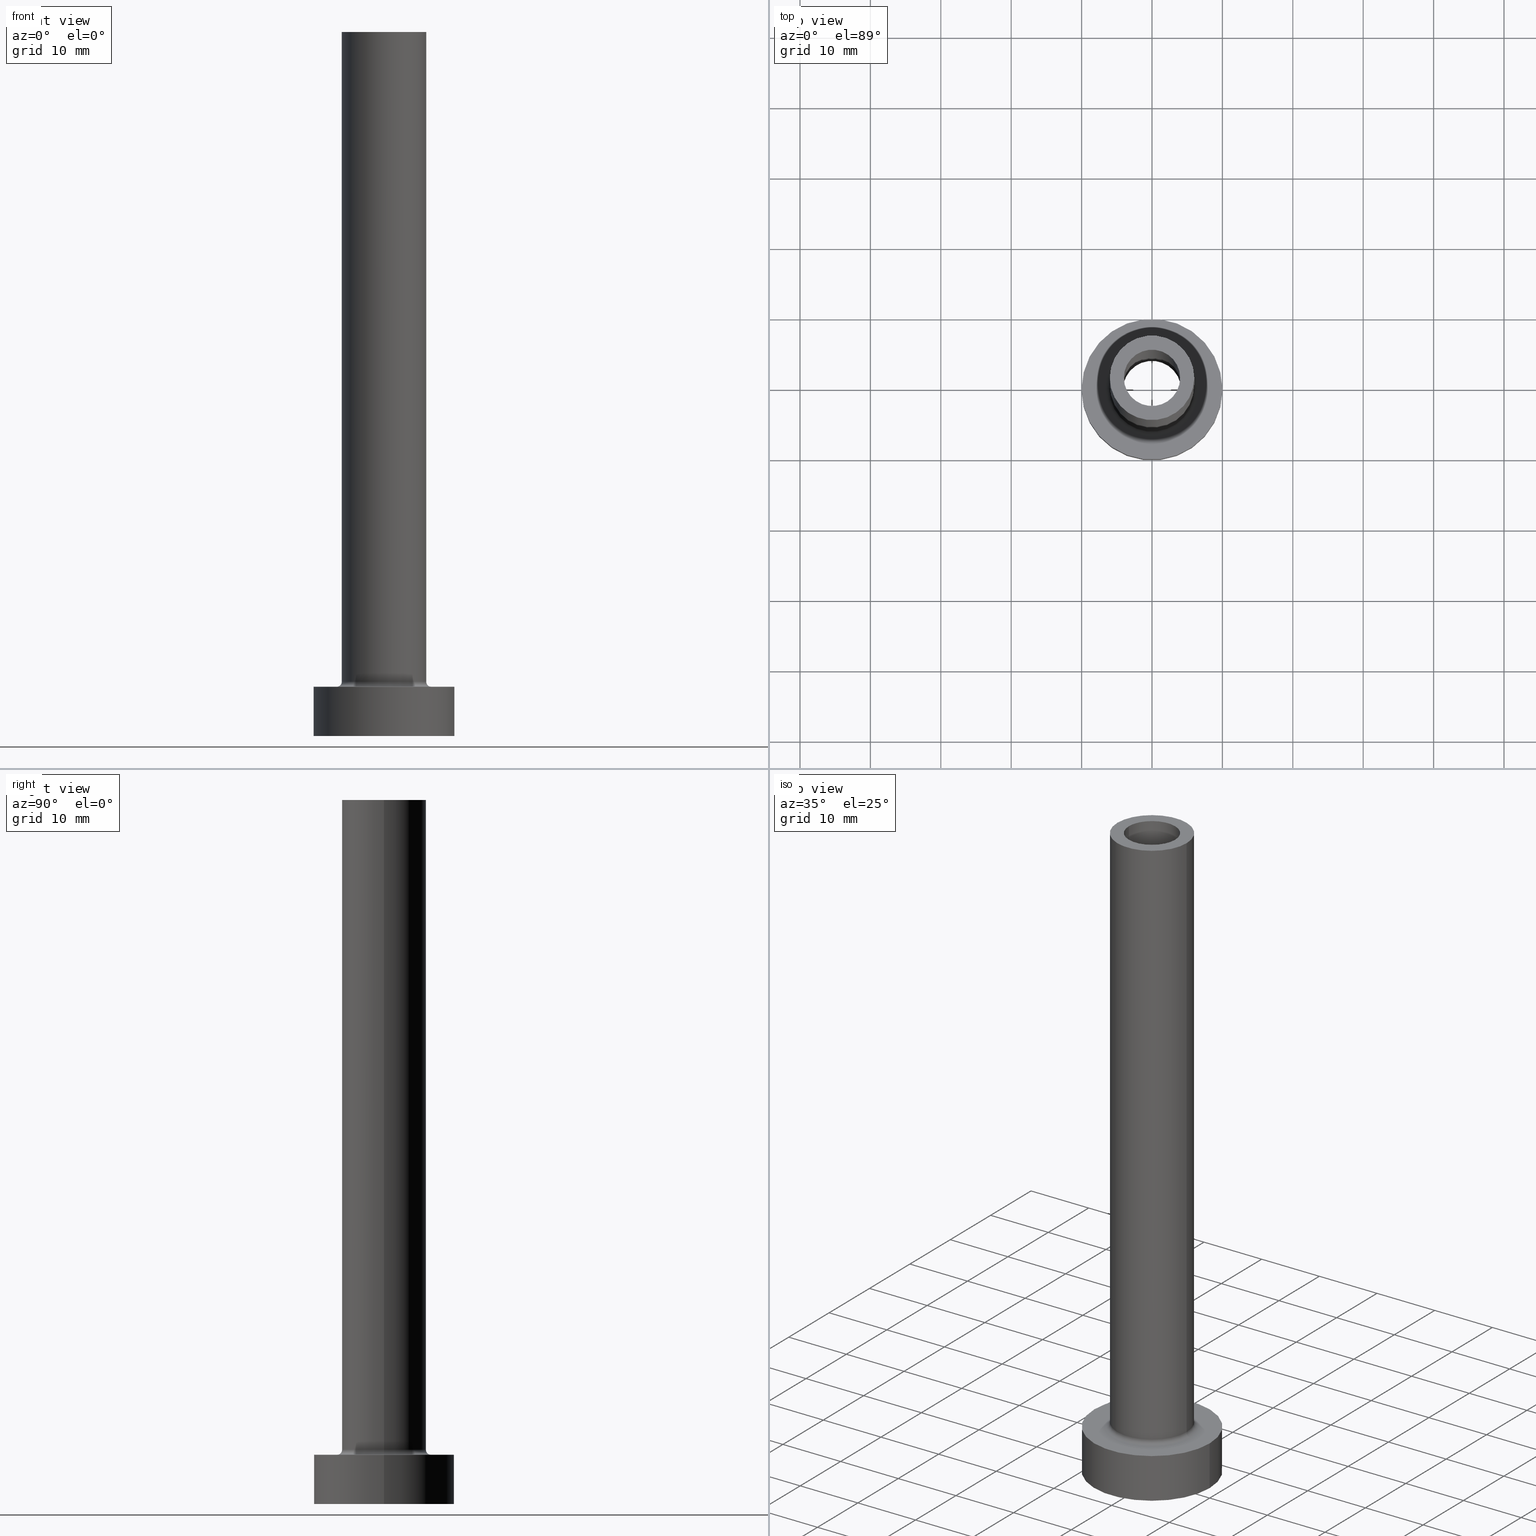
[diagram: canonical four-view strip — front | top / right | iso, engineering-drawing reading convention]
A machine part, canonical four-view strip (front | top / right | iso — engineering-drawing reading convention). The complete STEP part file that produces these views, byte-faithful:
ISO-10303-21;
HEADER;
FILE_DESCRIPTION (( 'STEP AP203' ),
    '1' );
FILE_NAME ('e886.STEP',
    '2023-02-13T09:11:17',
    ( '' ),
    ( '' ),
    'SwSTEP 2.0',
    'SolidWorks 2019',
    '' );
FILE_SCHEMA (( 'CONFIG_CONTROL_DESIGN' ));
ENDSEC;

DATA;
#1 = CALENDAR_DATE ( 2023, 13, 2 ) ;
#2 = SECURITY_CLASSIFICATION ( '', '', #251 ) ;
#3 = LINE ( 'NONE', #289, #141 ) ;
#4 = CARTESIAN_POINT ( 'NONE',  ( 0.000000000000000000, 0.000000000000000000, 55.00000000000000711 ) ) ;
#5 = DIRECTION ( 'NONE',  ( 1.000000000000000000, 0.000000000000000000, -0.000000000000000000 ) ) ;
#6 = DIRECTION ( 'NONE',  ( -0.000000000000000000, -0.000000000000000000, -1.000000000000000000 ) ) ;
#7 = LINE ( 'NONE', #49, #86 ) ;
#8 = VERTEX_POINT ( 'NONE', #224 ) ;
#9 = CARTESIAN_POINT ( 'NONE',  ( -6.700000000000001066, 8.205133554287267548E-16, 6.999999999999999112 ) ) ;
#10 = FACE_OUTER_BOUND ( 'NONE', #185, .T. ) ;
#11 = AXIS2_PLACEMENT_3D ( 'NONE', #265, #84, #120 ) ;
#12 = VERTEX_POINT ( 'NONE', #221 ) ;
#13 = CARTESIAN_POINT ( 'NONE',  ( 0.000000000000000000, 0.000000000000000000, 7.000000000000000000 ) ) ;
#14 = DIRECTION ( 'NONE',  ( -0.000000000000000000, -0.000000000000000000, -1.000000000000000000 ) ) ;
#15 = APPLICATION_CONTEXT ( 'configuration controlled 3d designs of mechanical parts and assemblies' ) ;
#16 = VERTEX_POINT ( 'NONE', #254 ) ;
#17 = CARTESIAN_POINT ( 'NONE',  ( 0.000000000000000000, 0.000000000000000000, 7.699999999999998401 ) ) ;
#18 = DIRECTION ( 'NONE',  ( 0.000000000000000000, 0.000000000000000000, 1.000000000000000000 ) ) ;
#19 = EDGE_CURVE ( 'NONE', #180, #247, #112, .T. ) ;
#20 = ORIENTED_EDGE ( 'NONE', *, *, #203, .T. ) ;
#21 = CARTESIAN_POINT ( 'NONE',  ( 0.000000000000000000, 0.000000000000000000, 100.0000000000000000 ) ) ;
#22 = ORIENTED_EDGE ( 'NONE', *, *, #294, .F. ) ;
#23 = AXIS2_PLACEMENT_3D ( 'NONE', #17, #312, #372 ) ;
#24 = ORIENTED_EDGE ( 'NONE', *, *, #138, .F. ) ;
#25 = CC_DESIGN_DATE_AND_TIME_ASSIGNMENT ( #213, #244, ( #307 ) ) ;
#26 = CALENDAR_DATE ( 2023, 13, 2 ) ;
#27 = ORIENTED_EDGE ( 'NONE', *, *, #19, .F. ) ;
#28 = AXIS2_PLACEMENT_3D ( 'NONE', #322, #280, #214 ) ;
#29 = APPROVAL_STATUS ( 'not_yet_approved' ) ;
#30 = ORIENTED_EDGE ( 'NONE', *, *, #402, .T. ) ;
#31 = EDGE_CURVE ( 'NONE', #139, #153, #425, .T. ) ;
#32 = PERSON_AND_ORGANIZATION ( #390, #356 ) ;
#33 = PRODUCT_DEFINITION_SHAPE ( 'NONE', 'NONE',  #307 ) ;
#34 = CARTESIAN_POINT ( 'NONE',  ( -10.00000000000000000, 0.000000000000000000, 7.000000000000000000 ) ) ;
#35 = LOCAL_TIME ( 10, 11, 17.00000000000000000, #242 ) ;
#36 = DIRECTION ( 'NONE',  ( -0.000000000000000000, -0.000000000000000000, -1.000000000000000000 ) ) ;
#37 = CALENDAR_DATE ( 2023, 13, 2 ) ;
#38 = CARTESIAN_POINT ( 'NONE',  ( 0.000000000000000000, 0.000000000000000000, 0.000000000000000000 ) ) ;
#39 = CARTESIAN_POINT ( 'NONE',  ( -4.000000000000000000, 0.000000000000000000, 100.0000000000000000 ) ) ;
#40 = CIRCLE ( 'NONE', #210, 0.7000000000000000666 ) ;
#41 = LOCAL_TIME ( 10, 11, 17.00000000000000000, #66 ) ;
#42 = DIRECTION ( 'NONE',  ( 0.000000000000000000, 0.000000000000000000, -1.000000000000000000 ) ) ;
#43 = DIRECTION ( 'NONE',  ( 1.000000000000000000, 0.000000000000000000, 0.000000000000000000 ) ) ;
#44 = CYLINDRICAL_SURFACE ( 'NONE', #362, 10.00000000000000000 ) ;
#45 = CARTESIAN_POINT ( 'NONE',  ( 0.000000000000000000, 0.000000000000000000, 55.00000000000000711 ) ) ;
#46 = EDGE_LOOP ( 'NONE', ( #130, #96 ) ) ;
#47 = LINE ( 'NONE', #79, #250 ) ;
#48 = VECTOR ( 'NONE', #378, 1000.000000000000000 ) ;
#49 = CARTESIAN_POINT ( 'NONE',  ( 10.00000000000000000, 1.224646799147353256E-15, 7.000000000000000000 ) ) ;
#50 = CIRCLE ( 'NONE', #330, 10.00000000000000000 ) ;
#51 = ORIENTED_EDGE ( 'NONE', *, *, #106, .T. ) ;
#52 = CC_DESIGN_PERSON_AND_ORGANIZATION_ASSIGNMENT ( #94, #142, ( #307 ) ) ;
#53 = DIRECTION ( 'NONE',  ( 0.000000000000000000, 0.000000000000000000, -1.000000000000000000 ) ) ;
#54 = DIRECTION ( 'NONE',  ( 1.000000000000000000, 0.000000000000000000, 0.000000000000000000 ) ) ;
#55 = EDGE_LOOP ( 'NONE', ( #321, #195 ) ) ;
#56 = CYLINDRICAL_SURFACE ( 'NONE', #288, 10.00000000000000000 ) ;
#57 = EDGE_LOOP ( 'NONE', ( #379, #24 ) ) ;
#58 = APPROVAL_STATUS ( 'not_yet_approved' ) ;
#59 = ORIENTED_EDGE ( 'NONE', *, *, #212, .F. ) ;
#60 = EDGE_LOOP ( 'NONE', ( #147, #426, #105, #398 ) ) ;
#61 = ORIENTED_EDGE ( 'NONE', *, *, #31, .T. ) ;
#62 = EDGE_CURVE ( 'NONE', #12, #226, #431, .T. ) ;
#63 = COORDINATED_UNIVERSAL_TIME_OFFSET ( 1, 0, .AHEAD. ) ;
#64 = EDGE_LOOP ( 'NONE', ( #344, #301, #417, #454 ) ) ;
#65 = CIRCLE ( 'NONE', #395, 4.150000000000000355 ) ;
#66 = COORDINATED_UNIVERSAL_TIME_OFFSET ( 1, 0, .AHEAD. ) ;
#67 = APPROVAL_STATUS ( 'not_yet_approved' ) ;
#68 = CARTESIAN_POINT ( 'NONE',  ( 0.000000000000000000, 0.000000000000000000, 0.000000000000000000 ) ) ;
#69 = CC_DESIGN_PERSON_AND_ORGANIZATION_ASSIGNMENT ( #436, #111, ( #2 ) ) ;
#70 = DIRECTION ( 'NONE',  ( 0.000000000000000000, 0.000000000000000000, 1.000000000000000000 ) ) ;
#71 = AXIS2_PLACEMENT_3D ( 'NONE', #308, #343, #230 ) ;
#72 = LOCAL_TIME ( 10, 11, 17.00000000000000000, #208 ) ;
#73 = APPROVAL_PERSON_ORGANIZATION ( #360, #406, #384 ) ;
#74 = PLANE ( 'NONE',  #444 ) ;
#75 = CALENDAR_DATE ( 2023, 13, 2 ) ;
#76 = DIRECTION ( 'NONE',  ( 0.000000000000000000, 0.000000000000000000, -1.000000000000000000 ) ) ;
#77 = EDGE_CURVE ( 'NONE', #180, #409, #352, .T. ) ;
#78 = ORIENTED_EDGE ( 'NONE', *, *, #271, .F. ) ;
#79 = CARTESIAN_POINT ( 'NONE',  ( -4.000000000000000000, 0.000000000000000000, 100.0000000000000000 ) ) ;
#80 = CIRCLE ( 'NONE', #376, 4.150000000000000355 ) ;
#81 = CARTESIAN_POINT ( 'NONE',  ( 0.000000000000000000, 0.000000000000000000, 100.0000000000000000 ) ) ;
#82 = CARTESIAN_POINT ( 'NONE',  ( 0.000000000000000000, 0.000000000000000000, 100.0000000000000000 ) ) ;
#83 =( NAMED_UNIT ( * ) PLANE_ANGLE_UNIT ( ) SI_UNIT ( $, .RADIAN. ) );
#84 = DIRECTION ( 'NONE',  ( 0.000000000000000000, 0.000000000000000000, -1.000000000000000000 ) ) ;
#85 = ADVANCED_FACE ( 'NONE', ( #253 ), #331, .F. ) ;
#86 = VECTOR ( 'NONE', #300, 1000.000000000000000 ) ;
#87 = DIRECTION ( 'NONE',  ( -1.000000000000000000, 0.000000000000000000, 0.000000000000000000 ) ) ;
#88 = AXIS2_PLACEMENT_3D ( 'NONE', #443, #373, #172 ) ;
#89 = EDGE_LOOP ( 'NONE', ( #412, #358, #103, #218 ) ) ;
#90 = PRODUCT_RELATED_PRODUCT_CATEGORY ( 'detail', '', ( #327 ) ) ;
#91 = ADVANCED_BREP_SHAPE_REPRESENTATION ( 'e886', ( #235, #123 ), #246 ) ;
#92 = CARTESIAN_POINT ( 'NONE',  ( 10.00000000000000000, 1.224646799147353256E-15, 0.000000000000000000 ) ) ;
#93 = CARTESIAN_POINT ( 'NONE',  ( 4.150000000000000355, 5.082284216461515156E-16, 55.00000000000000711 ) ) ;
#94 = PERSON_AND_ORGANIZATION ( #390, #356 ) ;
#95 = DESIGN_CONTEXT ( 'detailed design', #15, 'design' ) ;
#96 = ORIENTED_EDGE ( 'NONE', *, *, #393, .T. ) ;
#97 = PERSON_AND_ORGANIZATION ( #390, #356 ) ;
#98 = VERTEX_POINT ( 'NONE', #39 ) ;
#99 = VECTOR ( 'NONE', #199, 1000.000000000000000 ) ;
#100 = APPLICATION_PROTOCOL_DEFINITION ( 'international standard', 'config_control_design', 1994, #432 ) ;
#101 = CARTESIAN_POINT ( 'NONE',  ( 0.000000000000000000, 0.000000000000000000, 100.0000000000000000 ) ) ;
#102 = EDGE_CURVE ( 'NONE', #136, #424, #40, .T. ) ;
#103 = ORIENTED_EDGE ( 'NONE', *, *, #148, .T. ) ;
#104 = CALENDAR_DATE ( 2023, 13, 2 ) ;
#105 = ORIENTED_EDGE ( 'NONE', *, *, #399, .T. ) ;
#106 = EDGE_CURVE ( 'NONE', #424, #388, #460, .T. ) ;
#107 = PLANE ( 'NONE',  #237 ) ;
#108 = LOCAL_TIME ( 10, 11, 17.00000000000000000, #217 ) ;
#109 = APPROVAL ( #29, 'NEUR�EN�' ) ;
#110 = CYLINDRICAL_SURFACE ( 'NONE', #133, 6.000000000000000888 ) ;
#111 = PERSON_AND_ORGANIZATION_ROLE ( 'classification_officer' ) ;
#112 = LINE ( 'NONE', #34, #354 ) ;
#113 = AXIS2_PLACEMENT_3D ( 'NONE', #368, #42, #297 ) ;
#114 = DATE_AND_TIME ( #37, #72 ) ;
#115 = AXIS2_PLACEMENT_3D ( 'NONE', #82, #236, #416 ) ;
#116 = CARTESIAN_POINT ( 'NONE',  ( 0.000000000000000000, 0.000000000000000000, 100.0000000000000000 ) ) ;
#117 = PERSON_AND_ORGANIZATION_ROLE ( 'creator' ) ;
#118 = DIRECTION ( 'NONE',  ( 0.000000000000000000, 0.000000000000000000, 1.000000000000000000 ) ) ;
#119 = ADVANCED_FACE ( 'NONE', ( #403 ), #392, .F. ) ;
#120 = DIRECTION ( 'NONE',  ( -1.000000000000000000, 0.000000000000000000, 0.000000000000000000 ) ) ;
#121 = ADVANCED_FACE ( 'NONE', ( #459, #397 ), #74, .F. ) ;
#122 = DIRECTION ( 'NONE',  ( 0.000000000000000000, 0.000000000000000000, 1.000000000000000000 ) ) ;
#123 = AXIS2_PLACEMENT_3D ( 'NONE', #389, #453, #137 ) ;
#124 = DIRECTION ( 'NONE',  ( -1.000000000000000000, 0.000000000000000000, 0.000000000000000000 ) ) ;
#125 = DIRECTION ( 'NONE',  ( 1.000000000000000000, 0.000000000000000000, 0.000000000000000000 ) ) ;
#126 = PLANE ( 'NONE',  #414 ) ;
#127 = EDGE_LOOP ( 'NONE', ( #268, #323 ) ) ;
#128 =( NAMED_UNIT ( * ) SI_UNIT ( $, .STERADIAN. ) SOLID_ANGLE_UNIT ( ) );
#129 = CARTESIAN_POINT ( 'NONE',  ( 0.000000000000000000, 0.000000000000000000, 7.000000000000000000 ) ) ;
#130 = ORIENTED_EDGE ( 'NONE', *, *, #62, .T. ) ;
#131 = AXIS2_PLACEMENT_3D ( 'NONE', #157, #429, #259 ) ;
#132 = DIRECTION ( 'NONE',  ( 0.000000000000000000, 0.000000000000000000, -1.000000000000000000 ) ) ;
#133 = AXIS2_PLACEMENT_3D ( 'NONE', #183, #350, #161 ) ;
#134 = CARTESIAN_POINT ( 'NONE',  ( 4.000000000000000000, 4.898587196589411843E-16, 100.0000000000000000 ) ) ;
#135 = APPROVAL_PERSON_ORGANIZATION ( #333, #167, #365 ) ;
#136 = VERTEX_POINT ( 'NONE', #367 ) ;
#137 = DIRECTION ( 'NONE',  ( 1.000000000000000000, 0.000000000000000000, 0.000000000000000000 ) ) ;
#138 = EDGE_CURVE ( 'NONE', #456, #247, #314, .T. ) ;
#139 = VERTEX_POINT ( 'NONE', #334 ) ;
#140 = ADVANCED_FACE ( 'NONE', ( #219 ), #434, .F. ) ;
#141 = VECTOR ( 'NONE', #437, 1000.000000000000000 ) ;
#142 = PERSON_AND_ORGANIZATION_ROLE ( 'creator' ) ;
#143 = CARTESIAN_POINT ( 'NONE',  ( 0.000000000000000000, 0.000000000000000000, 0.000000000000000000 ) ) ;
#144 = ORIENTED_EDGE ( 'NONE', *, *, #282, .T. ) ;
#145 = EDGE_CURVE ( 'NONE', #176, #16, #296, .T. ) ;
#146 = FACE_OUTER_BOUND ( 'NONE', #283, .T. ) ;
#147 = ORIENTED_EDGE ( 'NONE', *, *, #418, .F. ) ;
#148 = EDGE_CURVE ( 'NONE', #181, #270, #3, .T. ) ;
#149 = AXIS2_PLACEMENT_3D ( 'NONE', #366, #118, #458 ) ;
#150 = CC_DESIGN_APPROVAL ( #167, ( #2 ) ) ;
#151 = DIRECTION ( 'NONE',  ( 1.000000000000000000, 0.000000000000000000, 0.000000000000000000 ) ) ;
#152 = SHAPE_DEFINITION_REPRESENTATION ( #33, #91 ) ;
#153 = VERTEX_POINT ( 'NONE', #438 ) ;
#154 = ADVANCED_FACE ( 'NONE', ( #364 ), #110, .T. ) ;
#155 = AXIS2_PLACEMENT_3D ( 'NONE', #116, #76, #339 ) ;
#156 = DIRECTION ( 'NONE',  ( 1.000000000000000000, 0.000000000000000000, 0.000000000000000000 ) ) ;
#157 = CARTESIAN_POINT ( 'NONE',  ( 0.000000000000000000, 0.000000000000000000, 7.000000000000000000 ) ) ;
#158 = DIRECTION ( 'NONE',  ( 0.000000000000000000, 0.000000000000000000, 1.000000000000000000 ) ) ;
#159 = DIRECTION ( 'NONE',  ( 1.000000000000000000, 0.000000000000000000, 0.000000000000000000 ) ) ;
#160 = DIRECTION ( 'NONE',  ( 1.000000000000000000, 0.000000000000000000, 0.000000000000000000 ) ) ;
#161 = DIRECTION ( 'NONE',  ( -1.000000000000000000, 0.000000000000000000, 0.000000000000000000 ) ) ;
#162 = ORIENTED_EDGE ( 'NONE', *, *, #170, .F. ) ;
#163 = CC_DESIGN_PERSON_AND_ORGANIZATION_ASSIGNMENT ( #187, #394, ( #318 ) ) ;
#164 = TOROIDAL_SURFACE ( 'NONE', #346, 6.700000000000001066, 0.6999999999999999556 ) ;
#165 = FACE_BOUND ( 'NONE', #211, .T. ) ;
#166 = ORIENTED_EDGE ( 'NONE', *, *, #382, .T. ) ;
#167 = APPROVAL ( #67, 'NEUR�EN�' ) ;
#168 = CARTESIAN_POINT ( 'NONE',  ( -10.00000000000000000, 0.000000000000000000, 0.000000000000000000 ) ) ;
#169 = FACE_OUTER_BOUND ( 'NONE', #177, .T. ) ;
#170 = EDGE_CURVE ( 'NONE', #181, #176, #205, .T. ) ;
#171 = EDGE_LOOP ( 'NONE', ( #279, #449, #209, #27 ) ) ;
#172 = DIRECTION ( 'NONE',  ( 1.000000000000000000, 0.000000000000000000, 0.000000000000000000 ) ) ;
#173 = CIRCLE ( 'NONE', #88, 4.150000000000000355 ) ;
#174 = ORIENTED_EDGE ( 'NONE', *, *, #19, .T. ) ;
#175 = ADVANCED_FACE ( 'NONE', ( #353 ), #411, .F. ) ;
#176 = VERTEX_POINT ( 'NONE', #93 ) ;
#177 = EDGE_LOOP ( 'NONE', ( #316, #329, #174, #359 ) ) ;
#178 = EDGE_CURVE ( 'NONE', #409, #180, #222, .T. ) ;
#179 = AXIS2_PLACEMENT_3D ( 'NONE', #81, #18, #43 ) ;
#180 = VERTEX_POINT ( 'NONE', #194 ) ;
#181 = VERTEX_POINT ( 'NONE', #262 ) ;
#182 = EDGE_LOOP ( 'NONE', ( #22, #249, #286, #215 ) ) ;
#183 = CARTESIAN_POINT ( 'NONE',  ( 0.000000000000000000, 0.000000000000000000, 100.0000000000000000 ) ) ;
#184 = AXIS2_PLACEMENT_3D ( 'NONE', #45, #193, #371 ) ;
#185 = EDGE_LOOP ( 'NONE', ( #198, #166, #30, #363 ) ) ;
#186 = DIRECTION ( 'NONE',  ( 0.000000000000000000, 0.000000000000000000, 1.000000000000000000 ) ) ;
#187 = PERSON_AND_ORGANIZATION ( #390, #356 ) ;
#188 = AXIS2_PLACEMENT_3D ( 'NONE', #369, #293, #151 ) ;
#189 = CARTESIAN_POINT ( 'NONE',  ( 4.150000000000000355, 5.082284216461515156E-16, 66.73797256769670128 ) ) ;
#190 = CIRCLE ( 'NONE', #223, 6.000000000000000888 ) ;
#191 = CARTESIAN_POINT ( 'NONE',  ( 4.000000000000000000, 4.898587196589411843E-16, 100.0000000000000000 ) ) ;
#192 = CARTESIAN_POINT ( 'NONE',  ( 0.000000000000000000, 0.000000000000000000, 100.0000000000000000 ) ) ;
#193 = DIRECTION ( 'NONE',  ( 0.000000000000000000, 0.000000000000000000, 1.000000000000000000 ) ) ;
#194 = CARTESIAN_POINT ( 'NONE',  ( -10.00000000000000000, 0.000000000000000000, 7.000000000000000000 ) ) ;
#195 = ORIENTED_EDGE ( 'NONE', *, *, #428, .F. ) ;
#196 = LINE ( 'NONE', #191, #440 ) ;
#197 = CARTESIAN_POINT ( 'NONE',  ( -6.000000000000000888, 0.000000000000000000, 100.0000000000000000 ) ) ;
#198 = ORIENTED_EDGE ( 'NONE', *, *, #347, .F. ) ;
#199 = DIRECTION ( 'NONE',  ( -0.000000000000000000, -0.000000000000000000, -1.000000000000000000 ) ) ;
#200 = DIRECTION ( 'NONE',  ( 1.000000000000000000, 0.000000000000000000, -0.000000000000000000 ) ) ;
#201 = MECHANICAL_CONTEXT ( 'NONE', #432, 'mechanical' ) ;
#202 = CARTESIAN_POINT ( 'NONE',  ( 0.000000000000000000, 0.000000000000000000, 7.699999999999998401 ) ) ;
#203 = EDGE_CURVE ( 'NONE', #139, #8, #405, .T. ) ;
#204 = VERTEX_POINT ( 'NONE', #134 ) ;
#205 = CIRCLE ( 'NONE', #184, 4.150000000000000355 ) ;
#206 = UNCERTAINTY_MEASURE_WITH_UNIT (LENGTH_MEASURE( 1.000000000000000082E-05 ), #306, 'distance_accuracy_value', 'NONE');
#207 = ORIENTED_EDGE ( 'NONE', *, *, #145, .T. ) ;
#208 = COORDINATED_UNIVERSAL_TIME_OFFSET ( 1, 0, .AHEAD. ) ;
#209 = ORIENTED_EDGE ( 'NONE', *, *, #138, .T. ) ;
#210 = AXIS2_PLACEMENT_3D ( 'NONE', #260, #228, #401 ) ;
#211 = EDGE_LOOP ( 'NONE', ( #51, #305 ) ) ;
#212 = EDGE_CURVE ( 'NONE', #204, #98, #375, .T. ) ;
#213 = DATE_AND_TIME ( #104, #35 ) ;
#214 = DIRECTION ( 'NONE',  ( 1.000000000000000000, 0.000000000000000000, 0.000000000000000000 ) ) ;
#215 = ORIENTED_EDGE ( 'NONE', *, *, #102, .F. ) ;
#216 = AXIS2_PLACEMENT_3D ( 'NONE', #4, #158, #231 ) ;
#217 = COORDINATED_UNIVERSAL_TIME_OFFSET ( 1, 0, .AHEAD. ) ;
#218 = ORIENTED_EDGE ( 'NONE', *, *, #315, .T. ) ;
#219 = FACE_OUTER_BOUND ( 'NONE', #310, .T. ) ;
#220 = ADVANCED_FACE ( 'NONE', ( #10 ), #380, .T. ) ;
#221 = CARTESIAN_POINT ( 'NONE',  ( -4.000000000000000000, 0.000000000000000000, 55.00000000000000711 ) ) ;
#222 = CIRCLE ( 'NONE', #71, 10.00000000000000000 ) ;
#223 = AXIS2_PLACEMENT_3D ( 'NONE', #101, #342, #125 ) ;
#224 = CARTESIAN_POINT ( 'NONE',  ( -6.000000000000000888, 0.000000000000000000, 7.699999999999998401 ) ) ;
#225 = EDGE_CURVE ( 'NONE', #409, #456, #7, .T. ) ;
#226 = VERTEX_POINT ( 'NONE', #408 ) ;
#227 = ADVANCED_FACE ( 'NONE', ( #169 ), #56, .T. ) ;
#228 = DIRECTION ( 'NONE',  ( 0.000000000000000000, -1.000000000000000000, 0.000000000000000000 ) ) ;
#229 = AXIS2_PLACEMENT_3D ( 'NONE', #299, #303, #415 ) ;
#230 = DIRECTION ( 'NONE',  ( 1.000000000000000000, 0.000000000000000000, 0.000000000000000000 ) ) ;
#231 = DIRECTION ( 'NONE',  ( 1.000000000000000000, 0.000000000000000000, -0.000000000000000000 ) ) ;
#232 = CARTESIAN_POINT ( 'NONE',  ( -6.700000000000001066, 8.205133554287267548E-16, 7.699999999999998401 ) ) ;
#233 = ORIENTED_EDGE ( 'NONE', *, *, #31, .F. ) ;
#234 = DIRECTION ( 'NONE',  ( -1.000000000000000000, 0.000000000000000000, 0.000000000000000000 ) ) ;
#235 = MANIFOLD_SOLID_BREP ( 'Odebrat vysunut�m4', #311 ) ;
#236 = DIRECTION ( 'NONE',  ( 0.000000000000000000, 0.000000000000000000, -1.000000000000000000 ) ) ;
#237 = AXIS2_PLACEMENT_3D ( 'NONE', #391, #320, #386 ) ;
#238 = CARTESIAN_POINT ( 'NONE',  ( -4.150000000000000355, 0.000000000000000000, 0.000000000000000000 ) ) ;
#239 = FACE_OUTER_BOUND ( 'NONE', #451, .T. ) ;
#240 = DIRECTION ( 'NONE',  ( 0.000000000000000000, 0.000000000000000000, 1.000000000000000000 ) ) ;
#241 = ORIENTED_EDGE ( 'NONE', *, *, #399, .F. ) ;
#242 = COORDINATED_UNIVERSAL_TIME_OFFSET ( 1, 0, .AHEAD. ) ;
#243 = CARTESIAN_POINT ( 'NONE',  ( 0.000000000000000000, 0.000000000000000000, 7.699999999999998401 ) ) ;
#244 = DATE_TIME_ROLE ( 'creation_date' ) ;
#245 = FACE_OUTER_BOUND ( 'NONE', #182, .T. ) ;
#246 =( GEOMETRIC_REPRESENTATION_CONTEXT ( 3 ) GLOBAL_UNCERTAINTY_ASSIGNED_CONTEXT ( ( #206 ) ) GLOBAL_UNIT_ASSIGNED_CONTEXT ( ( #306, #83, #128 ) ) REPRESENTATION_CONTEXT ( 'NONE', 'WORKASPACE' ) );
#247 = VERTEX_POINT ( 'NONE', #168 ) ;
#248 = DIRECTION ( 'NONE',  ( 1.000000000000000000, 0.000000000000000000, 0.000000000000000000 ) ) ;
#249 = ORIENTED_EDGE ( 'NONE', *, *, #264, .T. ) ;
#250 = VECTOR ( 'NONE', #132, 1000.000000000000000 ) ;
#251 = SECURITY_CLASSIFICATION_LEVEL ( 'unclassified' ) ;
#252 = ADVANCED_FACE ( 'NONE', ( #407 ), #273, .F. ) ;
#253 = FACE_OUTER_BOUND ( 'NONE', #355, .T. ) ;
#254 = CARTESIAN_POINT ( 'NONE',  ( 4.150000000000000355, 5.082284216461515156E-16, 0.000000000000000000 ) ) ;
#255 = DATE_AND_TIME ( #75, #108 ) ;
#256 = DIRECTION ( 'NONE',  ( 0.000000000000000000, 0.000000000000000000, 1.000000000000000000 ) ) ;
#257 = CIRCLE ( 'NONE', #28, 6.700000000000001066 ) ;
#258 = DATE_TIME_ROLE ( 'classification_date' ) ;
#259 = DIRECTION ( 'NONE',  ( 1.000000000000000000, 0.000000000000000000, 0.000000000000000000 ) ) ;
#260 = CARTESIAN_POINT ( 'NONE',  ( 6.700000000000001066, 0.000000000000000000, 7.699999999999998401 ) ) ;
#261 = CARTESIAN_POINT ( 'NONE',  ( 6.700000000000001066, 0.000000000000000000, 6.999999999999999112 ) ) ;
#262 = CARTESIAN_POINT ( 'NONE',  ( -4.150000000000000355, 0.000000000000000000, 55.00000000000000711 ) ) ;
#263 = FACE_BOUND ( 'NONE', #46, .T. ) ;
#264 = EDGE_CURVE ( 'NONE', #8, #388, #423, .T. ) ;
#265 = CARTESIAN_POINT ( 'NONE',  ( 0.000000000000000000, 0.000000000000000000, 66.73797256769670128 ) ) ;
#266 = CARTESIAN_POINT ( 'NONE',  ( 0.000000000000000000, 0.000000000000000000, 0.000000000000000000 ) ) ;
#267 = DIRECTION ( 'NONE',  ( -1.000000000000000000, 1.224646799147353454E-16, 0.000000000000000000 ) ) ;
#268 = ORIENTED_EDGE ( 'NONE', *, *, #77, .T. ) ;
#269 = DIRECTION ( 'NONE',  ( 0.000000000000000000, 0.000000000000000000, 1.000000000000000000 ) ) ;
#270 = VERTEX_POINT ( 'NONE', #238 ) ;
#271 = EDGE_CURVE ( 'NONE', #176, #181, #173, .T. ) ;
#272 = CIRCLE ( 'NONE', #23, 6.000000000000000888 ) ;
#273 = CYLINDRICAL_SURFACE ( 'NONE', #115, 4.000000000000000000 ) ;
#274 = ORIENTED_EDGE ( 'NONE', *, *, #294, .T. ) ;
#275 = APPROVAL_DATE_TIME ( #278, #109 ) ;
#276 = EDGE_LOOP ( 'NONE', ( #420, #233, #20, #274 ) ) ;
#277 = CC_DESIGN_PERSON_AND_ORGANIZATION_ASSIGNMENT ( #97, #387, ( #327 ) ) ;
#278 = DATE_AND_TIME ( #26, #281 ) ;
#279 = ORIENTED_EDGE ( 'NONE', *, *, #178, .F. ) ;
#280 = DIRECTION ( 'NONE',  ( -0.000000000000000000, -0.000000000000000000, -1.000000000000000000 ) ) ;
#281 = LOCAL_TIME ( 10, 11, 17.00000000000000000, #63 ) ;
#282 = EDGE_CURVE ( 'NONE', #98, #204, #400, .T. ) ;
#283 = EDGE_LOOP ( 'NONE', ( #61, #325 ) ) ;
#284 = APPLICATION_PROTOCOL_DEFINITION ( 'international standard', 'config_control_design', 1994, #15 ) ;
#285 = AXIS2_PLACEMENT_3D ( 'NONE', #192, #70, #430 ) ;
#286 = ORIENTED_EDGE ( 'NONE', *, *, #106, .F. ) ;
#287 = APPROVAL_DATE_TIME ( #255, #167 ) ;
#288 = AXIS2_PLACEMENT_3D ( 'NONE', #446, #313, #87 ) ;
#289 = CARTESIAN_POINT ( 'NONE',  ( -4.150000000000000355, 0.000000000000000000, 66.73797256769670128 ) ) ;
#290 = CC_DESIGN_PERSON_AND_ORGANIZATION_ASSIGNMENT ( #32, #117, ( #318 ) ) ;
#291 = DIRECTION ( 'NONE',  ( 0.000000000000000000, 0.000000000000000000, 1.000000000000000000 ) ) ;
#292 = AXIS2_PLACEMENT_3D ( 'NONE', #461, #256, #156 ) ;
#293 = DIRECTION ( 'NONE',  ( 0.000000000000000000, 0.000000000000000000, 1.000000000000000000 ) ) ;
#294 = EDGE_CURVE ( 'NONE', #8, #136, #433, .T. ) ;
#295 = CIRCLE ( 'NONE', #229, 4.000000000000000000 ) ;
#296 = LINE ( 'NONE', #189, #422 ) ;
#297 = DIRECTION ( 'NONE',  ( -1.000000000000000000, 0.000000000000000000, 0.000000000000000000 ) ) ;
#298 = ADVANCED_FACE ( 'NONE', ( #165, #442 ), #126, .T. ) ;
#299 = CARTESIAN_POINT ( 'NONE',  ( 0.000000000000000000, 0.000000000000000000, 55.00000000000000711 ) ) ;
#300 = DIRECTION ( 'NONE',  ( -0.000000000000000000, -0.000000000000000000, -1.000000000000000000 ) ) ;
#301 = ORIENTED_EDGE ( 'NONE', *, *, #402, .F. ) ;
#302 = ADVANCED_FACE ( 'NONE', ( #324, #146 ), #107, .T. ) ;
#303 = DIRECTION ( 'NONE',  ( 0.000000000000000000, 0.000000000000000000, 1.000000000000000000 ) ) ;
#304 = DIRECTION ( 'NONE',  ( 1.224646799147353207E-16, 1.000000000000000000, -0.000000000000000000 ) ) ;
#305 = ORIENTED_EDGE ( 'NONE', *, *, #309, .T. ) ;
#306 =( LENGTH_UNIT ( ) NAMED_UNIT ( * ) SI_UNIT ( .MILLI., .METRE. ) );
#307 = PRODUCT_DEFINITION ( 'NEZN�M�', '', #318, #95 ) ;
#308 = CARTESIAN_POINT ( 'NONE',  ( 0.000000000000000000, 0.000000000000000000, 7.000000000000000000 ) ) ;
#309 = EDGE_CURVE ( 'NONE', #388, #424, #257, .T. ) ;
#310 = EDGE_LOOP ( 'NONE', ( #421, #207, #357, #351 ) ) ;
#311 = CLOSED_SHELL ( 'NONE', ( #85, #140, #340, #220, #435, #227, #298, #121, #154, #302, #119, #175, #457, #252 ) ) ;
#312 = DIRECTION ( 'NONE',  ( 0.000000000000000000, 0.000000000000000000, 1.000000000000000000 ) ) ;
#313 = DIRECTION ( 'NONE',  ( -0.000000000000000000, -0.000000000000000000, -1.000000000000000000 ) ) ;
#314 = CIRCLE ( 'NONE', #335, 10.00000000000000000 ) ;
#315 = EDGE_CURVE ( 'NONE', #270, #16, #80, .T. ) ;
#316 = ORIENTED_EDGE ( 'NONE', *, *, #225, .F. ) ;
#317 = PERSON_AND_ORGANIZATION ( #390, #356 ) ;
#318 = PRODUCT_DEFINITION_FORMATION_WITH_SPECIFIED_SOURCE ( 'LIBOVOLN�', '', #327, .NOT_KNOWN. ) ;
#319 = DIRECTION ( 'NONE',  ( 1.000000000000000000, 0.000000000000000000, 0.000000000000000000 ) ) ;
#320 = DIRECTION ( 'NONE',  ( 0.000000000000000000, 0.000000000000000000, 1.000000000000000000 ) ) ;
#321 = ORIENTED_EDGE ( 'NONE', *, *, #315, .F. ) ;
#322 = CARTESIAN_POINT ( 'NONE',  ( 0.000000000000000000, 0.000000000000000000, 7.000000000000000000 ) ) ;
#323 = ORIENTED_EDGE ( 'NONE', *, *, #178, .T. ) ;
#324 = FACE_BOUND ( 'NONE', #396, .T. ) ;
#325 = ORIENTED_EDGE ( 'NONE', *, *, #347, .T. ) ;
#326 = ORIENTED_EDGE ( 'NONE', *, *, #418, .T. ) ;
#327 = PRODUCT ( 'e886', 'e886', '', ( #201 ) ) ;
#328 = DATE_AND_TIME ( #1, #41 ) ;
#329 = ORIENTED_EDGE ( 'NONE', *, *, #77, .F. ) ;
#330 = AXIS2_PLACEMENT_3D ( 'NONE', #266, #122, #349 ) ;
#331 = CYLINDRICAL_SURFACE ( 'NONE', #155, 4.000000000000000000 ) ;
#332 = CC_DESIGN_DATE_AND_TIME_ASSIGNMENT ( #328, #258, ( #2 ) ) ;
#333 = PERSON_AND_ORGANIZATION ( #390, #356 ) ;
#334 = CARTESIAN_POINT ( 'NONE',  ( -6.000000000000000888, 0.000000000000000000, 100.0000000000000000 ) ) ;
#335 = AXIS2_PLACEMENT_3D ( 'NONE', #38, #186, #159 ) ;
#336 = DIRECTION ( 'NONE',  ( 0.000000000000000000, 0.000000000000000000, -1.000000000000000000 ) ) ;
#337 = CC_DESIGN_APPROVAL ( #109, ( #307 ) ) ;
#338 = PLANE ( 'NONE',  #216 ) ;
#339 = DIRECTION ( 'NONE',  ( -1.000000000000000000, 0.000000000000000000, 0.000000000000000000 ) ) ;
#340 = ADVANCED_FACE ( 'NONE', ( #245 ), #164, .F. ) ;
#341 = DIRECTION ( 'NONE',  ( 1.000000000000000000, 0.000000000000000000, 0.000000000000000000 ) ) ;
#342 = DIRECTION ( 'NONE',  ( 0.000000000000000000, 0.000000000000000000, 1.000000000000000000 ) ) ;
#343 = DIRECTION ( 'NONE',  ( 0.000000000000000000, 0.000000000000000000, 1.000000000000000000 ) ) ;
#344 = ORIENTED_EDGE ( 'NONE', *, *, #264, .F. ) ;
#345 = CC_DESIGN_APPROVAL ( #406, ( #318 ) ) ;
#346 = AXIS2_PLACEMENT_3D ( 'NONE', #243, #450, #341 ) ;
#347 = EDGE_CURVE ( 'NONE', #153, #139, #190, .T. ) ;
#348 = CARTESIAN_POINT ( 'NONE',  ( 0.000000000000000000, 0.000000000000000000, 100.0000000000000000 ) ) ;
#349 = DIRECTION ( 'NONE',  ( 1.000000000000000000, 0.000000000000000000, 0.000000000000000000 ) ) ;
#350 = DIRECTION ( 'NONE',  ( -0.000000000000000000, -0.000000000000000000, -1.000000000000000000 ) ) ;
#351 = ORIENTED_EDGE ( 'NONE', *, *, #148, .F. ) ;
#352 = CIRCLE ( 'NONE', #292, 10.00000000000000000 ) ;
#353 = FACE_OUTER_BOUND ( 'NONE', #89, .T. ) ;
#354 = VECTOR ( 'NONE', #36, 1000.000000000000000 ) ;
#355 = EDGE_LOOP ( 'NONE', ( #144, #326, #381, #241 ) ) ;
#356 = ORGANIZATION ( 'NEUR�EN�', 'NEUR�EN�', '' ) ;
#357 = ORIENTED_EDGE ( 'NONE', *, *, #428, .T. ) ;
#358 = ORIENTED_EDGE ( 'NONE', *, *, #271, .T. ) ;
#359 = ORIENTED_EDGE ( 'NONE', *, *, #361, .T. ) ;
#360 = PERSON_AND_ORGANIZATION ( #390, #356 ) ;
#361 = EDGE_CURVE ( 'NONE', #247, #456, #50, .T. ) ;
#362 = AXIS2_PLACEMENT_3D ( 'NONE', #13, #439, #234 ) ;
#363 = ORIENTED_EDGE ( 'NONE', *, *, #203, .F. ) ;
#364 = FACE_OUTER_BOUND ( 'NONE', #276, .T. ) ;
#365 = APPROVAL_ROLE ( '' ) ;
#366 = CARTESIAN_POINT ( 'NONE',  ( 0.000000000000000000, 0.000000000000000000, 55.00000000000000711 ) ) ;
#367 = CARTESIAN_POINT ( 'NONE',  ( 6.000000000000000888, 7.347880794884119736E-16, 7.699999999999998401 ) ) ;
#368 = CARTESIAN_POINT ( 'NONE',  ( 0.000000000000000000, 0.000000000000000000, 66.73797256769670128 ) ) ;
#369 = CARTESIAN_POINT ( 'NONE',  ( 0.000000000000000000, 0.000000000000000000, 7.699999999999998401 ) ) ;
#370 = CC_DESIGN_SECURITY_CLASSIFICATION ( #2, ( #318 ) ) ;
#371 = DIRECTION ( 'NONE',  ( 1.000000000000000000, 0.000000000000000000, 0.000000000000000000 ) ) ;
#372 = DIRECTION ( 'NONE',  ( 1.000000000000000000, 0.000000000000000000, 0.000000000000000000 ) ) ;
#373 = DIRECTION ( 'NONE',  ( 0.000000000000000000, 0.000000000000000000, 1.000000000000000000 ) ) ;
#374 = DIRECTION ( 'NONE',  ( 0.000000000000000000, 0.000000000000000000, 1.000000000000000000 ) ) ;
#375 = CIRCLE ( 'NONE', #179, 4.000000000000000000 ) ;
#376 = AXIS2_PLACEMENT_3D ( 'NONE', #143, #419, #248 ) ;
#377 = CARTESIAN_POINT ( 'NONE',  ( 10.00000000000000000, 1.224646799147353256E-15, 7.000000000000000000 ) ) ;
#378 = DIRECTION ( 'NONE',  ( -0.000000000000000000, -0.000000000000000000, -1.000000000000000000 ) ) ;
#379 = ORIENTED_EDGE ( 'NONE', *, *, #361, .F. ) ;
#380 = CYLINDRICAL_SURFACE ( 'NONE', #413, 6.000000000000000888 ) ;
#381 = ORIENTED_EDGE ( 'NONE', *, *, #62, .F. ) ;
#382 = EDGE_CURVE ( 'NONE', #153, #136, #410, .T. ) ;
#383 = ORIENTED_EDGE ( 'NONE', *, *, #282, .F. ) ;
#384 = APPROVAL_ROLE ( '' ) ;
#385 = APPROVAL_PERSON_ORGANIZATION ( #317, #109, #448 ) ;
#386 = DIRECTION ( 'NONE',  ( 1.000000000000000000, 0.000000000000000000, -0.000000000000000000 ) ) ;
#387 = PERSON_AND_ORGANIZATION_ROLE ( 'design_owner' ) ;
#388 = VERTEX_POINT ( 'NONE', #9 ) ;
#389 = CARTESIAN_POINT ( 'NONE',  ( 0.000000000000000000, 0.000000000000000000, 0.000000000000000000 ) ) ;
#390 = PERSON ( 'NEUR�EN�', 'NEUR�EN�', 'NEUR�EN�', ('NEUR�EN�'), ('NEUR�EN�'), ('NEUR�EN�') ) ;
#391 = CARTESIAN_POINT ( 'NONE',  ( 0.000000000000000000, 0.000000000000000000, 100.0000000000000000 ) ) ;
#392 = TOROIDAL_SURFACE ( 'NONE', #188, 6.700000000000001066, 0.6999999999999999556 ) ;
#393 = EDGE_CURVE ( 'NONE', #226, #12, #295, .T. ) ;
#394 = PERSON_AND_ORGANIZATION_ROLE ( 'design_supplier' ) ;
#395 = AXIS2_PLACEMENT_3D ( 'NONE', #404, #6, #160 ) ;
#396 = EDGE_LOOP ( 'NONE', ( #383, #59 ) ) ;
#397 = FACE_OUTER_BOUND ( 'NONE', #57, .T. ) ;
#398 = ORIENTED_EDGE ( 'NONE', *, *, #393, .F. ) ;
#399 = EDGE_CURVE ( 'NONE', #98, #12, #47, .T. ) ;
#400 = CIRCLE ( 'NONE', #427, 4.000000000000000000 ) ;
#401 = DIRECTION ( 'NONE',  ( 0.000000000000000000, 0.000000000000000000, -1.000000000000000000 ) ) ;
#402 = EDGE_CURVE ( 'NONE', #136, #8, #272, .T. ) ;
#403 = FACE_OUTER_BOUND ( 'NONE', #64, .T. ) ;
#404 = CARTESIAN_POINT ( 'NONE',  ( 0.000000000000000000, 0.000000000000000000, 0.000000000000000000 ) ) ;
#405 = LINE ( 'NONE', #197, #48 ) ;
#406 = APPROVAL ( #58, 'NEUR�EN�' ) ;
#407 = FACE_OUTER_BOUND ( 'NONE', #60, .T. ) ;
#408 = CARTESIAN_POINT ( 'NONE',  ( 4.000000000000000000, 4.898587196589411843E-16, 55.00000000000000711 ) ) ;
#409 = VERTEX_POINT ( 'NONE', #377 ) ;
#410 = LINE ( 'NONE', #441, #99 ) ;
#411 = CYLINDRICAL_SURFACE ( 'NONE', #11, 4.150000000000000355 ) ;
#412 = ORIENTED_EDGE ( 'NONE', *, *, #145, .F. ) ;
#413 = AXIS2_PLACEMENT_3D ( 'NONE', #348, #14, #124 ) ;
#414 = AXIS2_PLACEMENT_3D ( 'NONE', #129, #269, #200 ) ;
#415 = DIRECTION ( 'NONE',  ( 1.000000000000000000, 0.000000000000000000, 0.000000000000000000 ) ) ;
#416 = DIRECTION ( 'NONE',  ( -1.000000000000000000, 0.000000000000000000, 0.000000000000000000 ) ) ;
#417 = ORIENTED_EDGE ( 'NONE', *, *, #102, .T. ) ;
#418 = EDGE_CURVE ( 'NONE', #204, #226, #196, .T. ) ;
#419 = DIRECTION ( 'NONE',  ( -0.000000000000000000, -0.000000000000000000, -1.000000000000000000 ) ) ;
#420 = ORIENTED_EDGE ( 'NONE', *, *, #382, .F. ) ;
#421 = ORIENTED_EDGE ( 'NONE', *, *, #170, .T. ) ;
#422 = VECTOR ( 'NONE', #336, 1000.000000000000000 ) ;
#423 = CIRCLE ( 'NONE', #447, 0.7000000000000000666 ) ;
#424 = VERTEX_POINT ( 'NONE', #261 ) ;
#425 = CIRCLE ( 'NONE', #285, 6.000000000000000888 ) ;
#426 = ORIENTED_EDGE ( 'NONE', *, *, #212, .T. ) ;
#427 = AXIS2_PLACEMENT_3D ( 'NONE', #21, #240, #54 ) ;
#428 = EDGE_CURVE ( 'NONE', #16, #270, #65, .T. ) ;
#429 = DIRECTION ( 'NONE',  ( -0.000000000000000000, -0.000000000000000000, -1.000000000000000000 ) ) ;
#430 = DIRECTION ( 'NONE',  ( 1.000000000000000000, 0.000000000000000000, 0.000000000000000000 ) ) ;
#431 = CIRCLE ( 'NONE', #149, 4.000000000000000000 ) ;
#432 = APPLICATION_CONTEXT ( 'configuration controlled 3d designs of mechanical parts and assemblies' ) ;
#433 = CIRCLE ( 'NONE', #452, 6.000000000000000888 ) ;
#434 = CYLINDRICAL_SURFACE ( 'NONE', #113, 4.150000000000000355 ) ;
#435 = ADVANCED_FACE ( 'NONE', ( #445 ), #44, .T. ) ;
#436 = PERSON_AND_ORGANIZATION ( #390, #356 ) ;
#437 = DIRECTION ( 'NONE',  ( 0.000000000000000000, 0.000000000000000000, -1.000000000000000000 ) ) ;
#438 = CARTESIAN_POINT ( 'NONE',  ( 6.000000000000000888, 7.347880794884119736E-16, 100.0000000000000000 ) ) ;
#439 = DIRECTION ( 'NONE',  ( -0.000000000000000000, -0.000000000000000000, -1.000000000000000000 ) ) ;
#440 = VECTOR ( 'NONE', #53, 1000.000000000000000 ) ;
#441 = CARTESIAN_POINT ( 'NONE',  ( 6.000000000000000888, 7.347880794884119736E-16, 100.0000000000000000 ) ) ;
#442 = FACE_OUTER_BOUND ( 'NONE', #127, .T. ) ;
#443 = CARTESIAN_POINT ( 'NONE',  ( 0.000000000000000000, 0.000000000000000000, 55.00000000000000711 ) ) ;
#444 = AXIS2_PLACEMENT_3D ( 'NONE', #68, #291, #5 ) ;
#445 = FACE_OUTER_BOUND ( 'NONE', #171, .T. ) ;
#446 = CARTESIAN_POINT ( 'NONE',  ( 0.000000000000000000, 0.000000000000000000, 7.000000000000000000 ) ) ;
#447 = AXIS2_PLACEMENT_3D ( 'NONE', #232, #304, #267 ) ;
#448 = APPROVAL_ROLE ( '' ) ;
#449 = ORIENTED_EDGE ( 'NONE', *, *, #225, .T. ) ;
#450 = DIRECTION ( 'NONE',  ( 0.000000000000000000, 0.000000000000000000, 1.000000000000000000 ) ) ;
#451 = EDGE_LOOP ( 'NONE', ( #162, #78 ) ) ;
#452 = AXIS2_PLACEMENT_3D ( 'NONE', #202, #374, #319 ) ;
#453 = DIRECTION ( 'NONE',  ( 0.000000000000000000, 0.000000000000000000, 1.000000000000000000 ) ) ;
#454 = ORIENTED_EDGE ( 'NONE', *, *, #309, .F. ) ;
#455 = APPROVAL_DATE_TIME ( #114, #406 ) ;
#456 = VERTEX_POINT ( 'NONE', #92 ) ;
#457 = ADVANCED_FACE ( 'NONE', ( #263, #239 ), #338, .F. ) ;
#458 = DIRECTION ( 'NONE',  ( 1.000000000000000000, 0.000000000000000000, 0.000000000000000000 ) ) ;
#459 = FACE_BOUND ( 'NONE', #55, .T. ) ;
#460 = CIRCLE ( 'NONE', #131, 6.700000000000001066 ) ;
#461 = CARTESIAN_POINT ( 'NONE',  ( 0.000000000000000000, 0.000000000000000000, 7.000000000000000000 ) ) ;
ENDSEC;
END-ISO-10303-21;
